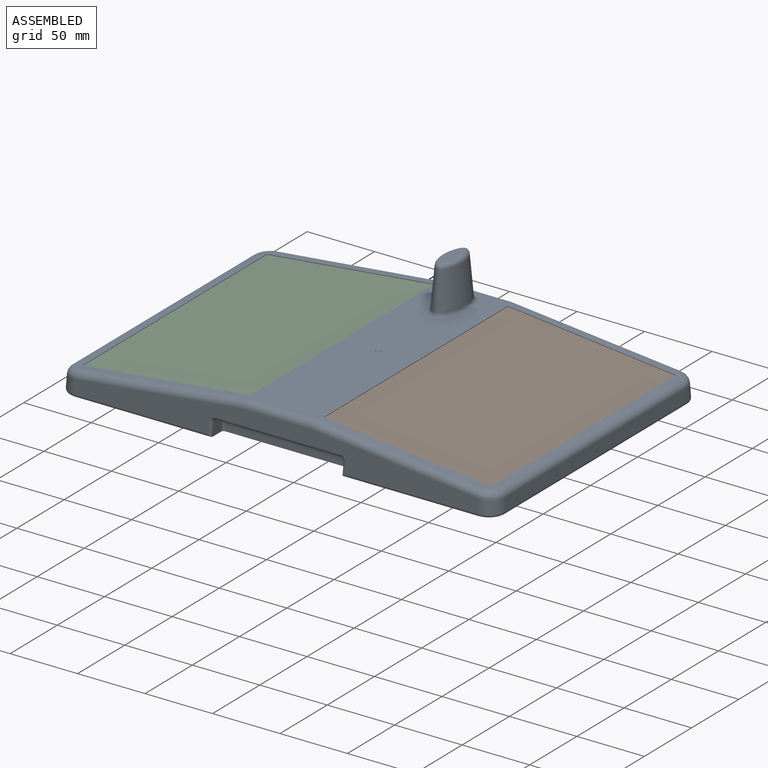
[diagram: assembled view]
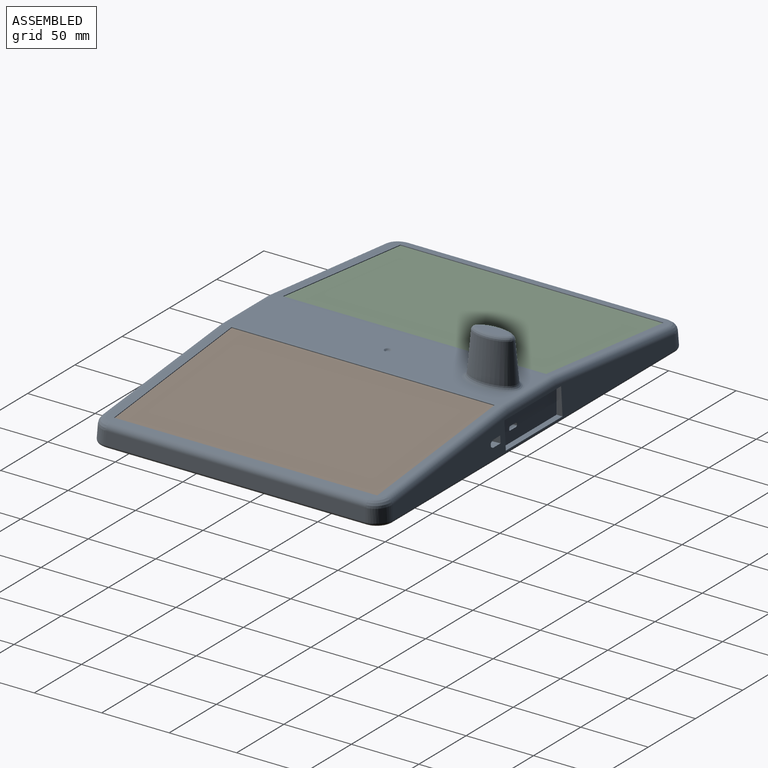
[diagram: assembled view, second angle]
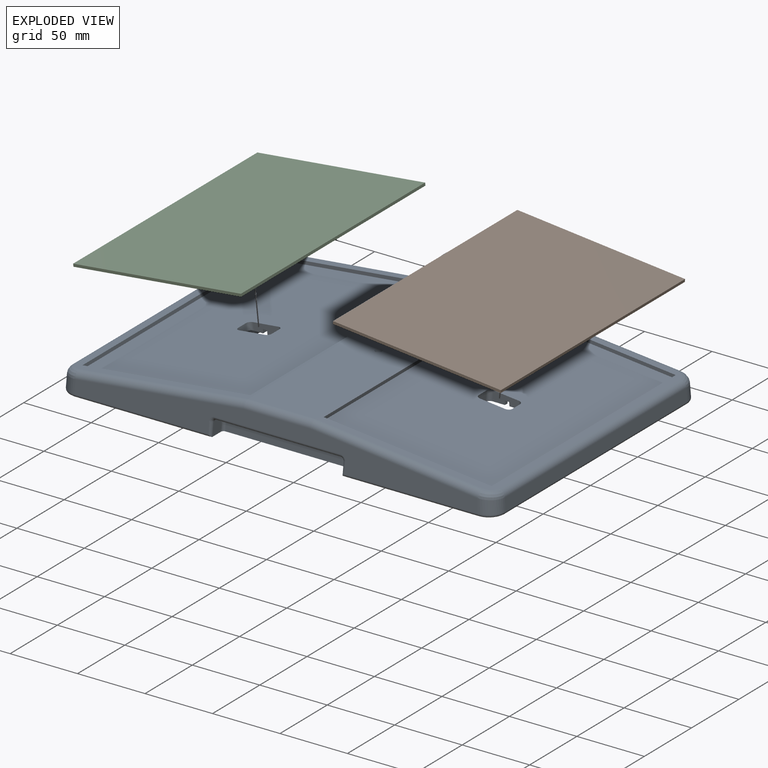
[diagram: exploded view]
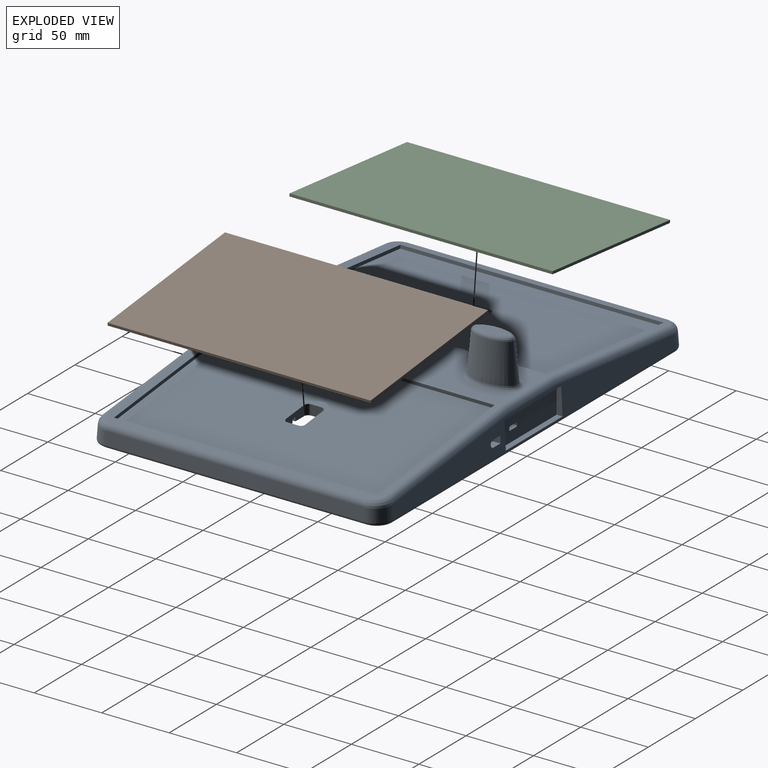
[diagram: exploded view, second angle]
ASSEMBLY  parts=3 mates=2
PART A: 342 faces, bbox 323.3x217.3x64.4 mm
  f0: plane 12.2x7.21mm, normal (0,-1,-0.05), area 37.7mm2, adj f298,f299,f300,f301,f322,f323,f324,f325
  f1: plane 17.24x9.74mm, normal (0,0,-1), area 81.2mm2, adj f3,f4,f304,f305,f308,f312,f314,f316
  f2: plane 135.07x91.07mm, normal (0,0,-1), area 7128.2mm2, adj f3,f5,f8,f19,f26,f28,f35,f36
  f3: plane 92x15mm, normal (0,-1,-0.05), area 499.1mm2, adj f1,f2,f18,f22,f25,f27,f40,f43
  f4: plane 3x1.21mm, normal (0,1,0), area 3.6mm2, adj f1,f301,f305,f312
  f5: plane 1.21x1.2mm, normal (0,1,0), area 1.4mm2, adj f2,f300,f301,f302
  f6: plane 37.95x24.48mm, normal (0,0,-1), area 324.8mm2, adj f7,f19,f123,f124,f125,f174,f177,f178
  f7: plane 3.66x3mm, normal (1,0,-0.05), area 10.8mm2, adj f6,f9,f178,f291
  f8: plane 4.66x3mm, normal (-1,0,-0.05), area 13.8mm2, adj f2,f9,f175,f291
  f9: plane 41.07x13.3mm, normal (0,0,-1), area 163.4mm2, adj f7,f8,f19,f122,f123,f124,f125,f126
  f10: plane 135.07x91.07mm, normal (0,0,-1), area 5370.5mm2, adj f14,f28,f31,f32,f33,f41,f42,f108
  f11: plane 37.95x24.48mm, normal (0,0,-1), area 324.8mm2, adj f13,f41,f199,f200,f201,f202,f204,f207
  f12: plane 195.07x124.38mm, normal (-0.1,0,0.99), area 24025.4mm2, adj f51,f52,f53,f54,f281,f282,f283,f284
  f13: plane 3x2.26mm, normal (-1,0,-0.05), area 6.6mm2, adj f11,f15,f220,f281
  f14: plane 3.26x3mm, normal (1,0,-0.05), area 9.6mm2, adj f10,f15,f217,f281
  f15: plane 41.07x13.3mm, normal (0,0,-1), area 159.2mm2, adj f13,f14,f41,f210,f211,f212,f213,f214
  f16: plane 5.58x3.69mm, normal (0,0,-1), area 19.1mm2, adj f28,f238,f239,f240
  f17: plane 5.58x3.69mm, normal (0,0,-1), area 19.1mm2, adj f28,f222,f223,f224
  f18: plane 17.24x16.44mm, normal (0,0,-1), area 203.8mm2, adj f3,f35,f135,f297,f309,f310,f315,f319
  f19: plane 66.26x5mm, normal (-1,0,-0.05), area 312.1mm2, adj f2,f6,f9,f27,f40,f122,f123,f180
  f20: plane 319.02x213.02mm, normal (0,0,-1), area 14864.3mm2, adj f94,f95,f96,f97,f98,f99,f100,f101
  f21: plane 298.96x23.16mm, normal (0,-1,0.05), area 4060.5mm2, adj f61,f62,f64,f65,f67,f141,f143,f144
  f22: plane 76.58x46.59mm, normal (0,0,-1), area 2133.8mm2, adj f3,f24,f29,f41,f43,f107,f116,f117
  f23: plane 42x12mm, normal (0,0,-1), area 298.1mm2, adj f105,f110,f111,f112,f113,f114,f115,f120
  f24: plane 69.5x10mm, normal (0,-1,-0.05), area 696mm2, adj f22,f25,f107,f249
  f25: plane 232.09x180.09mm, normal (0,0,-1), area 12754.6mm2, adj f3,f24,f28,f29,f30,f31,f32,f33
  f26: plane 16.26x5mm, normal (-1,0,-0.05), area 80.8mm2, adj f2,f27,f39,f242
  f27: plane 100.02x100.02mm, normal (0,0,-1), area 8584.1mm2, adj f3,f19,f26,f28,f39,f40,f41,f42
  f28: plane 92x15mm, normal (0,1,-0.05), area 471.7mm2, adj f2,f10,f16,f17,f25,f27,f39,f42
  f29: plane 10.24x10mm, normal (-1,0,-0.05), area 99.9mm2, adj f22,f25,f249,f260
  f30: plane 13x10.39mm, normal (-1,0,0), area 130.7mm2, adj f25,f241,f246,f261
  f31: plane 91x13mm, normal (0,1,0), area 952mm2, adj f10,f25,f232,f241,f246,f247
  f32: plane 125x10mm, normal (1,0,0), area 1250mm2, adj f10,f25,f247,f248
  f33: plane 18.5x10mm, normal (0,-1,0), area 185mm2, adj f10,f25,f108,f248
  f34: plane 10.24x10mm, normal (1,0,0), area 99.7mm2, adj f25,f93,f258,f263
  f35: plane 94x10mm, normal (0,-1,0), area 844.1mm2, adj f2,f18,f25,f89,f90,f91,f93,f132
  f36: plane 131x10mm, normal (-1,0,0), area 1310mm2, adj f2,f25,f250,f251
  f37: plane 94x13mm, normal (0,1,0), area 982mm2, adj f2,f25,f230,f231,f250,f262
  f38: plane 13x10.39mm, normal (1,0,0), area 130.7mm2, adj f25,f231,f259,f262
  f39: cone r=4mm half-angle=3deg, axis (0,0,-1), area 32.5mm2, adj f2,f26,f27,f28
  f40: cone r=4mm half-angle=3deg, axis (0,0,-1), area 32.5mm2, adj f2,f3,f19,f27
  f41: plane 92x5mm, normal (1,0,-0.05), area 429.6mm2, adj f10,f11,f15,f22,f27,f42,f43,f117
  f42: cone r=4mm half-angle=3deg, axis (0,0,-1), area 32.5mm2, adj f10,f27,f28,f41
  f43: cone r=4mm half-angle=3deg, axis (0,0,-1), area 32.5mm2, adj f3,f22,f27,f41
  f44: plane 60x20mm, normal (0,1,0), area 1176.4mm2, adj f85,f86,f87,f88,f89,f90,f91,f92
  f45: plane 298.96x23.16mm, normal (0,1,0.05), area 4037.4mm2, adj f60,f63,f72,f74,f75,f85,f86,f87
  f46: plane 205.88x131.5mm, normal (-0.1,0,0.99), area 2740.6mm2, adj f49,f51,f52,f53,f54,f67,f69,f71
  f47: plane 192.96x9.36mm, normal (1,0,0.05), area 1804.6mm2, adj f62,f63,f68,f151
  f48: plane 192.96x9.36mm, normal (-1,0,0.05), area 1804.6mm2, adj f60,f61,f71,f152
  f49: plane 204.51x50mm, normal (0,0,1), area 9349.4mm2, adj f46,f50,f65,f74,f137,f280
  f50: plane 205.88x131.5mm, normal (0.1,0,0.99), area 2740.6mm2, adj f49,f55,f56,f57,f58,f64,f66,f68
  f51: plane 124.58x15.55mm, normal (0,-1,0), area 312.5mm2, adj f12,f46,f52,f54
  f52: plane 195x2.49mm, normal (0.99,0,0.1), area 487.5mm2, adj f12,f46,f51,f53
  f53: plane 124.58x15.55mm, normal (0,1,0), area 312.5mm2, adj f12,f46,f52,f54
  f54: plane 195x2.49mm, normal (-0.99,0,-0.1), area 487.5mm2, adj f12,f46,f51,f53
  f55: plane 124.58x15.55mm, normal (0,-1,0), area 312.5mm2, adj f50,f56,f58,f59
  f56: plane 195x2.49mm, normal (0.99,0,-0.1), area 487.5mm2, adj f50,f55,f57,f59
  f57: plane 124.58x15.55mm, normal (0,1,0), area 312.5mm2, adj f50,f56,f58,f59
  f58: plane 195x2.49mm, normal (-0.99,0,0.1), area 487.5mm2, adj f50,f55,f57,f59
  f59: plane 195.07x124.38mm, normal (0.1,0,0.99), area 24025.4mm2, adj f55,f56,f57,f58,f289,f290,f291,f292
  f60: cylinder r=12mm len=12.51mm, axis (0.05,-0.05,1), area 183.6mm2, adj f45,f48,f73,f154
  f61: cylinder r=12mm len=12.51mm, axis (0.05,0.05,1), area 183.6mm2, adj f21,f48,f69,f150
  f62: cylinder r=12mm len=12.51mm, axis (-0.05,0.05,1), area 183.6mm2, adj f21,f47,f66,f149
  f63: cylinder r=12mm len=12.51mm, axis (-0.05,-0.05,1), area 183.6mm2, adj f45,f47,f70,f153
  f64: cylinder r=5mm len=124.99mm, axis (-0.99,0.01,0.1), area 949.4mm2, adj f21,f50,f65,f66
  f65: cylinder r=5mm len=50mm, axis (1,0,0), area 377.6mm2, adj f21,f49,f64,f67
  f66: bspline ~12.02x11.95mm, area 113.4mm2, adj f50,f62,f64,f68
  f67: cylinder r=5mm len=124.99mm, axis (0.99,0.01,0.1), area 949.4mm2, adj f21,f46,f65,f69
  f68: cylinder r=5mm len=191.98mm, axis (0,1,0), area 1357mm2, adj f47,f50,f66,f70
  f69: bspline ~12.02x11.95mm, area 113.4mm2, adj f46,f61,f67,f71
  f70: bspline ~12.02x11.95mm, area 113.4mm2, adj f50,f63,f68,f72
  f71: cylinder r=5mm len=191.98mm, axis (0,-1,0), area 1357mm2, adj f46,f48,f69,f73
  f72: cylinder r=5mm len=124.99mm, axis (-0.99,-0.01,0.1), area 949.4mm2, adj f45,f50,f70,f74
  f73: bspline ~12.02x11.95mm, area 113.4mm2, adj f46,f60,f71,f75
  f74: cylinder r=5mm len=50mm, axis (1,0,0), area 377.6mm2, adj f45,f49,f72,f75
  f75: cylinder r=5mm len=124.99mm, axis (-0.99,0.01,-0.1), area 949.4mm2, adj f45,f46,f73,f74
  f76: plane 32x7mm, normal (-1,0,-0.05), area 224.3mm2, adj f27,f80,f81,f84
  f77: plane 32x7mm, normal (0,1,-0.05), area 224.3mm2, adj f27,f80,f81,f82
  f78: plane 32x7mm, normal (1,0,-0.05), area 224.3mm2, adj f27,f80,f82,f83
  f79: plane 32x7mm, normal (0,-1,-0.05), area 224.3mm2, adj f27,f80,f83,f84
  f80: plane 36x36mm, normal (0,0,-1), area 1292.6mm2, adj f76,f77,f78,f79,f81,f82,f83,f84
  f81: cone r=2mm half-angle=3deg, axis (0,0,-1), area 24mm2, adj f27,f76,f77,f80
  f82: cone r=2mm half-angle=3deg, axis (0,0,-1), area 24mm2, adj f27,f77,f78,f80
  f83: cone r=2mm half-angle=3deg, axis (0,0,-1), area 24mm2, adj f27,f78,f79,f80
  f84: cone r=2mm half-angle=3deg, axis (0,0,-1), area 24mm2, adj f27,f76,f79,f80
  f85: plane 20x4.42mm, normal (1,0,0), area 77.8mm2, adj f44,f45,f86,f88
  f86: plane 60x3.37mm, normal (0,0,-1), area 202mm2, adj f44,f45,f85,f87
  f87: plane 20x4.42mm, normal (-1,0,0), area 77.8mm2, adj f44,f45,f86,f88
  f88: plane 60x4.42mm, normal (0,0,1), area 264.9mm2, adj f44,f45,f85,f87
  f89: plane 36.5x1mm, normal (-1,0,-0.05), area 36.6mm2, adj f35,f44,f132,f135
  f90: plane 36.5x6.21mm, normal (0,0,1), area 226.6mm2, adj f35,f44,f132,f133
  f91: plane 36.5x1mm, normal (1,0,-0.05), area 36.6mm2, adj f35,f44,f133,f134
  f92: plane 53.75x6.1mm, normal (0,0,-1), area 328mm2, adj f3,f44,f134,f135
  f93: plane 17.28x9.48mm, normal (0,0,-1), area 123.7mm2, adj f3,f34,f35,f134,f258,f263
  f94: cone r=15mm half-angle=3deg, axis (0,0,-1), area 95mm2, adj f20,f25,f95,f101
  f95: plane 150x4mm, normal (-1,0,-0.05), area 600.8mm2, adj f20,f25,f94,f96
  f96: cone r=15mm half-angle=3deg, axis (0,0,-1), area 95mm2, adj f20,f25,f95,f97
  f97: plane 202x4mm, normal (0,1,-0.05), area 809.1mm2, adj f20,f25,f96,f98,f329,f336
  f98: cone r=15mm half-angle=3deg, axis (0,0,-1), area 95mm2, adj f20,f25,f97,f99
  f99: plane 150x4mm, normal (1,0,-0.05), area 600.8mm2, adj f20,f25,f98,f100
  f100: cone r=15mm half-angle=3deg, axis (0,0,-1), area 95mm2, adj f20,f25,f99,f101
  f101: plane 202x4mm, normal (0,-1,-0.05), area 809.1mm2, adj f20,f25,f94,f100
  f102: plane 5x4.26mm, normal (0,1,-0.05), area 20mm2, adj f2,f27,f244,f245
  f103: plane 8x5mm, normal (-1,0,-0.05), area 38.7mm2, adj f2,f27,f243,f245
  f104: plane 5x4.26mm, normal (0,-1,-0.05), area 20mm2, adj f2,f27,f242,f243
  f105: plane 39.71x14mm, normal (0,1,0), area 543.4mm2, adj f23,f25,f106,f120,f121,f252
  f106: cylinder r=5mm len=14mm, axis (0,0,-1), area 110mm2, adj f25,f105,f107,f121
  f107: plane 45.5x14mm, normal (-1,0,0), area 219.4mm2, adj f22,f24,f25,f106,f116,f121
  f108: plane 45.5x14mm, normal (1,0,0), area 222mm2, adj f10,f25,f33,f109,f119,f121
  f109: cylinder r=8mm len=14mm, axis (0,0,-1), area 175.9mm2, adj f25,f108,f110,f121
  f110: plane 39.71x14mm, normal (0,-1,0), area 543.4mm2, adj f23,f25,f109,f120,f121,f253
  f111: plane 10x0.5mm, normal (1,0,0), area 5mm2, adj f23,f25,f253,f254
  f112: plane 29.1x10mm, normal (0,-1,0), area 291mm2, adj f23,f25,f254,f255
  f113: cylinder r=6mm len=12mm, axis (0,0,-1), area 281.5mm2, adj f23,f25,f255,f257
  f114: plane 10x0.5mm, normal (1,0,0), area 5mm2, adj f23,f25,f252,f256
  f115: plane 29.1x10mm, normal (0,1,0), area 291mm2, adj f23,f25,f256,f257
  f116: cylinder r=5mm len=5mm, axis (0,0,-1), area 31.4mm2, adj f22,f107,f117,f121
  f117: plane 24.45x4mm, normal (0,-1,0), area 97.4mm2, adj f22,f41,f116,f121
  f118: plane 24.45x4mm, normal (0,1,0), area 97.4mm2, adj f10,f41,f119,f121
  f119: cylinder r=8mm len=8mm, axis (0,0,-1), area 50.3mm2, adj f10,f108,f118,f121
  f120: plane 4x3mm, normal (-1,0,-0.05), area 12mm2, adj f23,f105,f110,f121
  f121: plane 61.5x47.5mm, normal (0,0,-1), area 389.6mm2, adj f41,f105,f106,f107,f108,f109,f110,f116
  f122: plane 15.29x3mm, normal (0,1,-0.05), area 45.7mm2, adj f2,f9,f19,f179
  f123: plane 16.29x3mm, normal (0,-1,-0.05), area 48.7mm2, adj f6,f9,f19,f174
  f124: plane 4.3x3mm, normal (-1,0,-0.05), area 12.9mm2, adj f6,f9,f174,f177
  f125: plane 13.78x3mm, normal (0,-1,-0.05), area 41.4mm2, adj f6,f9,f177,f178
  f126: plane 15.78x3mm, normal (0,1,-0.05), area 47.4mm2, adj f2,f9,f175,f176
  f127: plane 4.3x3mm, normal (1,0,-0.05), area 12.9mm2, adj f2,f9,f176,f179
  f128: plane 93.07x4.13mm, normal (0,-1,0.05), area 384.3mm2, adj f20,f129,f138,f139
  f129: cylinder r=8mm len=93.17mm, axis (1,0,0), area 1391.7mm2, adj f128,f140,f141,f142
  f130: plane 10.66x9.22mm, normal (1,0,-0.05), area 86.6mm2, adj f20,f139,f142,f146,f148
  f131: plane 10.45x9.23mm, normal (-1,0,0.05), area 84.9mm2, adj f20,f138,f140,f145,f147
  f132: cylinder r=1mm len=36.5mm, axis (0,-1,0), area 59.2mm2, adj f35,f44,f89,f90
  f133: cylinder r=1mm len=36.5mm, axis (0,-1,0), area 59.2mm2, adj f35,f44,f90,f91
  f134: cylinder r=1mm len=53.75mm, axis (0,1,0), area 64.7mm2, adj f3,f35,f44,f91,f92,f93
  f135: cylinder r=1mm len=53.75mm, axis (0,1,0), area 64.7mm2, adj f3,f18,f35,f44,f89,f92
  f136: plane 2.98x2.98mm, normal (0,0,1), area 7mm2, adj f137
  f137: cone r=1.49mm half-angle=45deg, axis (0,0,1), area 17.7mm2, adj f49,f136
  f138: cylinder r=2mm len=4.18mm, axis (0.05,0.05,1), area 13mm2, adj f20,f128,f131,f140
  f139: cylinder r=2mm len=4.55mm, axis (0.05,0.05,1), area 13.4mm2, adj f20,f128,f130,f142
  f140: bspline ~11.62x8.46mm, area 45.2mm2, adj f129,f131,f138,f143
  f141: cylinder r=2mm len=92.85mm, axis (1,0,0), area 347.9mm2, adj f21,f129,f143,f144
  f142: bspline ~11.59x8.42mm, area 44.1mm2, adj f129,f130,f139,f144
  f143: bspline ~5.34x4.24mm, area 16.3mm2, adj f21,f140,f141,f145
  f144: bspline ~4.85x4.63mm, area 15.3mm2, adj f21,f141,f142,f146
  f145: cylinder r=2mm len=9.84mm, axis (0.05,0.05,1), area 27.5mm2, adj f21,f131,f143,f147
  f146: cylinder r=2mm len=10.23mm, axis (0.05,0.05,1), area 28.6mm2, adj f21,f130,f144,f148
  f147: cylinder r=2mm len=101.05mm, axis (1,0,0), area 325.6mm2, adj f20,f21,f131,f145,f149
  f148: cylinder r=2mm len=101.05mm, axis (-1,0,0), area 325.9mm2, adj f20,f21,f130,f146,f150
  f149: bspline ~12.64x12.64mm, area 58.1mm2, adj f20,f62,f147,f151
  f150: bspline ~12.64x12.64mm, area 58.1mm2, adj f20,f61,f148,f152
  f151: cylinder r=2mm len=192.96mm, axis (0,1,0), area 626.4mm2, adj f20,f47,f149,f153
  f152: cylinder r=2mm len=192.96mm, axis (0,1,0), area 626.4mm2, adj f20,f48,f150,f154
  f153: bspline ~12.64x12.64mm, area 58.1mm2, adj f20,f63,f151,f155
  f154: bspline ~12.64x12.64mm, area 58.1mm2, adj f20,f60,f152,f155
  f155: cylinder r=2mm len=298.96mm, axis (-1,0,0), area 970.5mm2, adj f20,f45,f153,f154
  f156: plane 30.11x1mm, normal (0,1,-0.05), area 30.1mm2, adj f20,f157,f159,f160
  f157: plane 136.11x1mm, normal (1,0,-0.05), area 136.2mm2, adj f20,f156,f158,f160
  f158: plane 30.11x1mm, normal (0,-1,-0.05), area 30.1mm2, adj f20,f157,f159,f160
  f159: plane 136.11x1mm, normal (-1,0,-0.05), area 136.2mm2, adj f20,f156,f158,f160
  f160: plane 136x30mm, normal (0,0,-1), area 3451.7mm2, adj f156,f157,f158,f159,f162,f164
  f161: plane 20x20mm, normal (0,0,-1), area 314.2mm2, adj f162
  f162: cylinder r=10mm len=20mm, axis (0,0,-1), area 377mm2, adj f160,f161
  f163: plane 20x20mm, normal (0,0,-1), area 314.2mm2, adj f164
  f164: cylinder r=10mm len=20mm, axis (0,0,-1), area 377mm2, adj f160,f163
  f165: plane 30.11x1mm, normal (0,1,-0.05), area 30.1mm2, adj f20,f166,f168,f169
  f166: plane 136.11x1mm, normal (1,0,-0.05), area 136.2mm2, adj f20,f165,f167,f169
  f167: plane 30.11x1mm, normal (0,-1,-0.05), area 30.1mm2, adj f20,f166,f168,f169
  f168: plane 136.11x1mm, normal (-1,0,-0.05), area 136.2mm2, adj f20,f165,f167,f169
  f169: plane 136x30mm, normal (0,0,-1), area 3451.7mm2, adj f165,f166,f167,f168,f171,f173
  f170: plane 20x20mm, normal (0,0,-1), area 314.2mm2, adj f171
  f171: cylinder r=10mm len=20mm, axis (0,0,-1), area 377mm2, adj f169,f170
  f172: plane 20x20mm, normal (0,0,-1), area 314.2mm2, adj f173
  f173: cylinder r=10mm len=20mm, axis (0,0,-1), area 377mm2, adj f169,f172
  f174: cone r=4mm half-angle=3deg, axis (0,0,-1), area 19.2mm2, adj f6,f9,f123,f124
  f175: cone r=4mm half-angle=3deg, axis (0,0,-1), area 19.2mm2, adj f2,f8,f9,f126
  f176: cone r=4mm half-angle=3deg, axis (0,0,-1), area 19.2mm2, adj f2,f9,f126,f127
  f177: cone r=2mm half-angle=3deg, axis (0,0,1), area 9.1mm2, adj f6,f9,f124,f125
  f178: cone r=2mm half-angle=3deg, axis (0,0,1), area 9.1mm2, adj f6,f7,f9,f125
  f179: cone r=2mm half-angle=3deg, axis (0,0,1), area 9.1mm2, adj f2,f9,f122,f127
  f180: plane 15.29x3mm, normal (0,-1,-0.05), area 45.7mm2, adj f2,f19,f188,f194
  f181: plane 4.3x3mm, normal (1,0,-0.05), area 12.9mm2, adj f2,f188,f191,f194
  f182: plane 15.78x3mm, normal (0,-1,-0.05), area 47.4mm2, adj f2,f188,f190,f191
  f183: plane 3.26x3mm, normal (-1,0,-0.05), area 9.6mm2, adj f2,f188,f190,f289
  f184: plane 3x2.26mm, normal (1,0,-0.05), area 6.6mm2, adj f6,f188,f193,f289
  f185: plane 13.78x3mm, normal (0,1,-0.05), area 41.4mm2, adj f6,f188,f192,f193
  f186: plane 4.3x3mm, normal (-1,0,-0.05), area 12.9mm2, adj f6,f188,f189,f192
  f187: plane 16.29x3mm, normal (0,1,-0.05), area 48.7mm2, adj f6,f19,f188,f189
  f188: plane 41.07x13.3mm, normal (0,0,-1), area 159.2mm2, adj f19,f180,f181,f182,f183,f184,f185,f186
  f189: cone r=4mm half-angle=3deg, axis (0,0,-1), area 19.2mm2, adj f6,f186,f187,f188
  f190: cone r=4mm half-angle=3deg, axis (0,0,-1), area 19.2mm2, adj f2,f182,f183,f188
  f191: cone r=4mm half-angle=3deg, axis (0,0,-1), area 19.2mm2, adj f2,f181,f182,f188
  f192: cone r=2mm half-angle=3deg, axis (0,0,1), area 9.1mm2, adj f6,f185,f186,f188
  f193: cone r=2mm half-angle=3deg, axis (0,0,1), area 9.1mm2, adj f6,f184,f185,f188
  f194: cone r=2mm half-angle=3deg, axis (0,0,1), area 9.1mm2, adj f2,f180,f181,f188
  f195: plane 15.29x3mm, normal (0,1,-0.05), area 45.7mm2, adj f10,f41,f203,f209
  f196: plane 4.3x3mm, normal (-1,0,-0.05), area 12.9mm2, adj f10,f203,f206,f209
  f197: plane 15.78x3mm, normal (0,1,-0.05), area 47.4mm2, adj f10,f203,f205,f206
  f198: plane 4.66x3mm, normal (1,0,-0.05), area 13.8mm2, adj f10,f203,f205,f283
  f199: plane 3.66x3mm, normal (-1,0,-0.05), area 10.8mm2, adj f11,f203,f208,f283
  f200: plane 13.78x3mm, normal (0,-1,-0.05), area 41.4mm2, adj f11,f203,f207,f208
  f201: plane 4.3x3mm, normal (1,0,-0.05), area 12.9mm2, adj f11,f203,f204,f207
  f202: plane 16.29x3mm, normal (0,-1,-0.05), area 48.7mm2, adj f11,f41,f203,f204
  f203: plane 41.07x13.3mm, normal (0,0,-1), area 163.4mm2, adj f41,f195,f196,f197,f198,f199,f200,f201
  f204: cone r=4mm half-angle=3deg, axis (0,0,-1), area 19.2mm2, adj f11,f201,f202,f203
  f205: cone r=4mm half-angle=3deg, axis (0,0,-1), area 19.2mm2, adj f10,f197,f198,f203
  f206: cone r=4mm half-angle=3deg, axis (0,0,-1), area 19.2mm2, adj f10,f196,f197,f203
  f207: cone r=2mm half-angle=3deg, axis (0,0,1), area 9.1mm2, adj f11,f200,f201,f203
  f208: cone r=2mm half-angle=3deg, axis (0,0,1), area 9.1mm2, adj f11,f199,f200,f203
  f209: cone r=2mm half-angle=3deg, axis (0,0,1), area 9.1mm2, adj f10,f195,f196,f203
  f210: plane 15.29x3mm, normal (0,-1,-0.05), area 45.7mm2, adj f10,f15,f41,f221
  f211: plane 16.29x3mm, normal (0,1,-0.05), area 48.7mm2, adj f11,f15,f41,f216
  f212: plane 4.3x3mm, normal (1,0,-0.05), area 12.9mm2, adj f11,f15,f216,f219
  f213: plane 13.78x3mm, normal (0,1,-0.05), area 41.4mm2, adj f11,f15,f219,f220
  f214: plane 15.78x3mm, normal (0,-1,-0.05), area 47.4mm2, adj f10,f15,f217,f218
  f215: plane 4.3x3mm, normal (-1,0,-0.05), area 12.9mm2, adj f10,f15,f218,f221
  f216: cone r=4mm half-angle=3deg, axis (0,0,-1), area 19.2mm2, adj f11,f15,f211,f212
  f217: cone r=4mm half-angle=3deg, axis (0,0,-1), area 19.2mm2, adj f10,f14,f15,f214
  f218: cone r=4mm half-angle=3deg, axis (0,0,-1), area 19.2mm2, adj f10,f15,f214,f215
  f219: cone r=2mm half-angle=3deg, axis (0,0,1), area 9.1mm2, adj f11,f15,f212,f213
  f220: cone r=2mm half-angle=3deg, axis (0,0,1), area 9.1mm2, adj f11,f13,f15,f213
  f221: cone r=2mm half-angle=3deg, axis (0,0,1), area 9.1mm2, adj f10,f15,f210,f215
  f222: plane 3.9x3mm, normal (-1,0,-0.05), area 11.5mm2, adj f17,f28,f223,f231
  f223: cone r=2mm half-angle=3deg, axis (0,0,1), area 18.1mm2, adj f17,f222,f224,f231
  f224: plane 3.9x3mm, normal (1,0,-0.05), area 11.5mm2, adj f17,f28,f223,f231
  f225: plane 3.9x3mm, normal (-1,0,0), area 11.4mm2, adj f2,f28,f226,f231
  f226: cylinder r=2mm len=3mm, axis (0,0,-1), area 9.4mm2, adj f2,f225,f227,f231
  f227: plane 7x3mm, normal (0,-1,0), area 21mm2, adj f2,f226,f228,f231
  f228: cylinder r=2mm len=3mm, axis (0,0,-1), area 9.4mm2, adj f2,f227,f229,f231
  f229: plane 7.5x3mm, normal (-1,0,0), area 22.5mm2, adj f2,f228,f230,f231
  f230: cylinder r=2mm len=3mm, axis (0,0,-1), area 9.4mm2, adj f2,f37,f229,f231
  f231: plane 23.04x17.44mm, normal (0,0,-1), area 273.2mm2, adj f28,f37,f38,f222,f223,f224,f225,f226
  f232: cylinder r=2mm len=3mm, axis (0,0,-1), area 9.4mm2, adj f10,f31,f233,f241
  f233: plane 7.5x3mm, normal (1,0,0), area 22.5mm2, adj f10,f232,f234,f241
  f234: cylinder r=2mm len=3mm, axis (0,0,-1), area 9.4mm2, adj f10,f233,f235,f241
  f235: plane 7x3mm, normal (0,-1,0), area 21mm2, adj f10,f234,f236,f241
  f236: cylinder r=2mm len=3mm, axis (0,0,-1), area 9.4mm2, adj f10,f235,f237,f241
  f237: plane 3.9x3mm, normal (1,0,0), area 11.4mm2, adj f10,f28,f236,f241
  f238: plane 3.9x3mm, normal (-1,0,-0.05), area 11.5mm2, adj f16,f28,f239,f241
  f239: cone r=2mm half-angle=3deg, axis (0,0,1), area 18.1mm2, adj f16,f238,f240,f241
  f240: plane 3.9x3mm, normal (1,0,-0.05), area 11.5mm2, adj f16,f28,f239,f241
  f241: plane 23.04x17.44mm, normal (0,0,-1), area 273.2mm2, adj f28,f30,f31,f232,f233,f234,f235,f236
  f242: cylinder r=0.5mm len=5.01mm, axis (-0.05,-0.05,1), area 3.9mm2, adj f2,f26,f27,f104
  f243: cylinder r=0.5mm len=5.01mm, axis (0.05,0.05,-1), area 3.9mm2, adj f2,f27,f103,f104
  f244: cylinder r=0.5mm len=5.01mm, axis (-0.05,0.05,1), area 3.9mm2, adj f2,f19,f27,f102
  f245: cylinder r=0.5mm len=5.01mm, axis (0.05,-0.05,-1), area 3.9mm2, adj f2,f27,f102,f103
  f246: cylinder r=5mm len=13mm, axis (0,0,-1), area 102.1mm2, adj f25,f30,f31,f241
  f247: cylinder r=5mm len=10mm, axis (0,0,1), area 78.5mm2, adj f10,f25,f31,f32
  f248: cylinder r=5mm len=10mm, axis (0,0,-1), area 78.5mm2, adj f10,f25,f32,f33
  f249: cone r=5mm half-angle=3deg, axis (0,0,-1), area 82.8mm2, adj f22,f24,f25,f29
  f250: cylinder r=2mm len=10mm, axis (0,0,1), area 31.4mm2, adj f2,f25,f36,f37
  f251: cylinder r=2mm len=10mm, axis (0,0,-1), area 31.4mm2, adj f2,f25,f35,f36
  f252: cylinder r=1mm len=10mm, axis (0,0,1), area 15.7mm2, adj f23,f25,f105,f114
  f253: cylinder r=1mm len=10mm, axis (0,0,-1), area 15.7mm2, adj f23,f25,f110,f111
  f254: cylinder r=1mm len=10mm, axis (0,0,-1), area 15.7mm2, adj f23,f25,f111,f112
  f255: cylinder r=1mm len=10mm, axis (0,0,-1), area 7.8mm2, adj f23,f25,f112,f113
  f256: cylinder r=1mm len=10mm, axis (0,0,1), area 15.7mm2, adj f23,f25,f114,f115
  f257: cylinder r=1mm len=10mm, axis (0,0,-1), area 7.8mm2, adj f23,f25,f113,f115
  f258: cylinder r=2mm len=10.21mm, axis (0,-0.05,1), area 31.5mm2, adj f3,f25,f34,f93
  f259: cylinder r=2mm len=13.21mm, axis (0,0.05,1), area 40.9mm2, adj f25,f28,f38,f231
  f260: cylinder r=2mm len=10.04mm, axis (0.05,0.05,-1), area 31.4mm2, adj f3,f22,f25,f29
  f261: cylinder r=2mm len=13.21mm, axis (0,-0.05,-1), area 40.9mm2, adj f25,f28,f30,f241
  f262: cylinder r=5mm len=13mm, axis (0,0,-1), area 102.1mm2, adj f25,f37,f38,f231
  f263: cylinder r=5mm len=10mm, axis (0,0,1), area 78.5mm2, adj f25,f34,f35,f93
  f264: cone r=1mm half-angle=3deg, axis (0,0,-1), area 27.3mm2, adj f27,f265
  f265: plane 1.48x1.48mm, normal (0,0,-1), area 1.7mm2, adj f264
  f266: cone r=1mm half-angle=3deg, axis (0,0,-1), area 27.3mm2, adj f27,f267
  f267: plane 1.48x1.48mm, normal (0,0,-1), area 1.7mm2, adj f266
  f268: cone r=1mm half-angle=3deg, axis (0,0,-1), area 27.3mm2, adj f27,f269
  f269: plane 1.48x1.48mm, normal (0,0,-1), area 1.7mm2, adj f268
  f270: cone r=1mm half-angle=3deg, axis (0,0,-1), area 27.3mm2, adj f27,f271
  f271: plane 1.48x1.48mm, normal (0,0,-1), area 1.7mm2, adj f270
  f272: bspline ~36.5x28.52mm, area 2353.7mm2, adj f276,f277,f278,f279,f280
  f273: plane 25.53x8.55mm, normal (0,0,1), area 160.2mm2, adj f277,f278
  f274: plane 8x8mm, normal (0,0,-1), area 50.3mm2, adj f275
  f275: cylinder r=4mm len=48mm, axis (0,0,-1), area 1206.4mm2, adj f23,f274
  f276: bspline ~3x2.74mm, area 4.6mm2, adj f272,f277,f278
  f277: bspline ~31.14x7.3mm, area 142.5mm2, adj f272,f273,f276,f279
  f278: bspline ~31.14x7.35mm, area 142.5mm2, adj f272,f273,f276,f279
  f279: bspline ~3x2.74mm, area 4.6mm2, adj f272,f277,f278
  f280: bspline ~42.51x25.52mm, area 432.8mm2, adj f49,f272
  f281: plane 19.71x7.74mm, normal (0,-1,-0.05), area 119.6mm2, adj f10,f11,f12,f13,f14,f15,f285,f288
  f282: plane 8.96x5.44mm, normal (0.99,0,0.1), area 47.4mm2, adj f10,f12,f285,f286
  f283: plane 19.71x7.74mm, normal (0,1,-0.05), area 119.6mm2, adj f10,f11,f12,f198,f199,f203,f286,f287
  f284: plane 9.02x8.05mm, normal (-0.99,0,-0.1), area 69.7mm2, adj f11,f12,f287,f288
  f285: cylinder r=3mm len=6.38mm, axis (0.1,0.05,-0.99), area 26.7mm2, adj f10,f12,f281,f282
  f286: cylinder r=3mm len=6.38mm, axis (0.1,-0.05,-0.99), area 26.7mm2, adj f10,f12,f282,f283
  f287: cylinder r=3mm len=8.25mm, axis (-0.1,0.05,0.99), area 37.3mm2, adj f11,f12,f283,f284
  f288: cylinder r=3mm len=8.25mm, axis (-0.1,-0.05,0.99), area 37.3mm2, adj f11,f12,f281,f284
  f289: plane 19.71x7.74mm, normal (0,-1,-0.05), area 119.6mm2, adj f2,f6,f59,f183,f184,f188,f293,f296
  f290: plane 9.02x8.05mm, normal (0.99,0,-0.1), area 69.7mm2, adj f6,f59,f295,f296
  f291: plane 19.71x7.74mm, normal (0,1,-0.05), area 119.6mm2, adj f2,f6,f7,f8,f9,f59,f294,f295
  f292: plane 8.96x5.44mm, normal (-0.99,0,0.1), area 47.4mm2, adj f2,f59,f293,f294
  f293: cylinder r=3mm len=6.38mm, axis (0.1,-0.05,0.99), area 26.7mm2, adj f2,f59,f289,f292
  f294: cylinder r=3mm len=6.38mm, axis (0.1,0.05,0.99), area 26.7mm2, adj f2,f59,f291,f292
  f295: cylinder r=3mm len=8.25mm, axis (-0.1,-0.05,-0.99), area 37.3mm2, adj f6,f59,f290,f291
  f296: cylinder r=3mm len=8.25mm, axis (-0.1,0.05,-0.99), area 37.3mm2, adj f6,f59,f289,f290
  f297: plane 2x1.21mm, normal (0,1,0), area 2.4mm2, adj f18,f299,f301,f310
  f298: plane 26.65x12.2mm, normal (0,0,1), area 325.2mm2, adj f0,f35,f299,f300
  f299: plane 26.65x7.21mm, normal (1,0,0), area 190.7mm2, adj f0,f35,f297,f298,f301
  f300: plane 26.65x7.21mm, normal (-1,0,0), area 190.7mm2, adj f0,f5,f35,f298,f301
  f301: plane 26.28x12.2mm, normal (0,0,-1), area 320.6mm2, adj f0,f4,f5,f297,f299,f300,f306,f311
  f302: plane 7.87x3mm, normal (-1,0,0), area 23.6mm2, adj f2,f5,f306,f307,f320
  f303: plane 3x2.64mm, normal (-1,0,0), area 7.7mm2, adj f2,f3,f307,f317
  f304: plane 3x2.75mm, normal (1,0,0), area 8mm2, adj f1,f3,f307,f321
  f305: plane 7.76x3mm, normal (1,0,0), area 23.3mm2, adj f1,f4,f306,f307,f316
  f306: plane 3x1.79mm, normal (0,-1,0), area 5.4mm2, adj f301,f302,f305,f307
  f307: plane 17.4x8.74mm, normal (0,0,-1), area 61.4mm2, adj f3,f302,f303,f304,f305,f306,f316,f317
  f308: plane 7.64x3mm, normal (-1,0,0), area 22.7mm2, adj f1,f3,f313,f314
  f309: plane 7.64x3mm, normal (1,0,0), area 22.7mm2, adj f3,f18,f313,f319
  f310: plane 3x2.76mm, normal (1,0,0), area 8.3mm2, adj f18,f297,f311,f313,f315
  f311: plane 3x1.79mm, normal (0,-1,0), area 5.4mm2, adj f301,f310,f312,f313
  f312: plane 3x2.76mm, normal (-1,0,0), area 8.3mm2, adj f1,f4,f311,f313,f318
  f313: plane 17.4x9.74mm, normal (0,0,-1), area 63.4mm2, adj f3,f308,f309,f310,f311,f312,f314,f315
  f314: cylinder r=2mm len=3mm, axis (0,0,1), area 9.2mm2, adj f1,f308,f313,f318
  f315: cylinder r=2mm len=3mm, axis (0,0,-1), area 9.2mm2, adj f18,f310,f313,f319
  f316: cylinder r=2mm len=3mm, axis (0,0,-1), area 8.3mm2, adj f1,f305,f307,f321
  f317: cylinder r=2mm len=3mm, axis (0,0,1), area 8.3mm2, adj f2,f303,f307,f320
  f318: cylinder r=5mm len=5mm, axis (0,0,1), area 23mm2, adj f1,f312,f313,f314
  f319: cylinder r=5mm len=5mm, axis (0,0,-1), area 23mm2, adj f18,f309,f313,f315
  f320: cylinder r=5mm len=4.92mm, axis (0,0,1), area 20.8mm2, adj f2,f302,f307,f317
  f321: cylinder r=5mm len=4.92mm, axis (0,0,-1), area 20.8mm2, adj f1,f304,f307,f316
  f322: plane 14.23x5.92mm, normal (1,0,0), area 72.7mm2, adj f0,f45,f323,f325
  f323: plane 13.96x8.2mm, normal (0,-0.05,1), area 114.6mm2, adj f0,f45,f322,f324
  f324: plane 14.03x2.08mm, normal (-0.56,-0.04,0.83), area 33.7mm2, adj f0,f45,f323,f326
  f325: plane 13.96x8.2mm, normal (0,0.05,-1), area 114.6mm2, adj f0,f45,f322,f327
  f326: plane 14.09x3.23mm, normal (-1,0,0), area 35mm2, adj f0,f45,f324,f327
  f327: plane 14.03x2.08mm, normal (-0.56,0.04,-0.83), area 33.7mm2, adj f0,f45,f325,f326
  f328: plane 20.5x1mm, normal (1,0,0), area 20.5mm2, adj f20,f329,f332,f339
  f329: plane 46x1mm, normal (0,-1,0), area 46mm2, adj f97,f328,f330,f332
  f330: plane 20.5x1mm, normal (-1,0,0), area 20.5mm2, adj f20,f329,f332,f338
  f331: plane 44x1mm, normal (0,1,0), area 44mm2, adj f20,f332,f338,f339
  f332: plane 46x21.5mm, normal (0,0,-1), area 988.6mm2, adj f328,f329,f330,f331,f338,f339
  f333: plane 20.5x1mm, normal (-1,0,0), area 20.5mm2, adj f20,f336,f337,f341
  f334: plane 44x1mm, normal (0,1,0), area 44mm2, adj f20,f337,f340,f341
  f335: plane 20.5x1mm, normal (1,0,0), area 20.5mm2, adj f20,f336,f337,f340
  f336: plane 46x1mm, normal (0,-1,0), area 46mm2, adj f97,f333,f335,f337
  f337: plane 46x21.5mm, normal (0,0,-1), area 988.6mm2, adj f333,f334,f335,f336,f340,f341
  f338: cylinder r=1mm len=1mm, axis (0,0,-1), area 1.6mm2, adj f20,f330,f331,f332
  f339: cylinder r=1mm len=1mm, axis (0,0,1), area 1.6mm2, adj f20,f328,f331,f332
  f340: cylinder r=1mm len=1mm, axis (0,0,1), area 1.6mm2, adj f20,f334,f335,f337
  f341: cylinder r=1mm len=1mm, axis (0,0,-1), area 1.6mm2, adj f20,f333,f334,f337
PART B: 6 faces, bbox 125x195x2 mm
  f0: plane 125x2mm, normal (0,1,0), area 250mm2, adj f1,f3,f4,f5
  f1: plane 195x2mm, normal (-1,0,0), area 390mm2, adj f0,f2,f4,f5
  f2: plane 125x2mm, normal (0,-1,0), area 250mm2, adj f1,f3,f4,f5
  f3: plane 195x2mm, normal (1,0,0), area 390mm2, adj f0,f2,f4,f5
  f4: plane 195x125mm, normal (0,0,1), area 24375mm2, adj f0,f1,f2,f3
  f5: plane 195x125mm, normal (0,0,-1), area 24375mm2, adj f0,f1,f2,f3
PART C: same geometry as B
PLACE A t=(24.18,-66.04,66.57)mm fixed
PLACE B rot(axis=(0,1,0),6deg) t=(201.28,-251.24,78.07)mm
PLACE C rot(axis=(0,-1,0),6deg) t=(23.05,-251.24,96.57)mm
MATE parallel B.f5 <-> A.f59  axis (-0.1,0,-0.99) through (113.3,-65.35,87.32)mm
MATE parallel A.f12 <-> C.f5  axis (-0.1,0,0.99) through (-64.94,-65.35,87.32)mm
